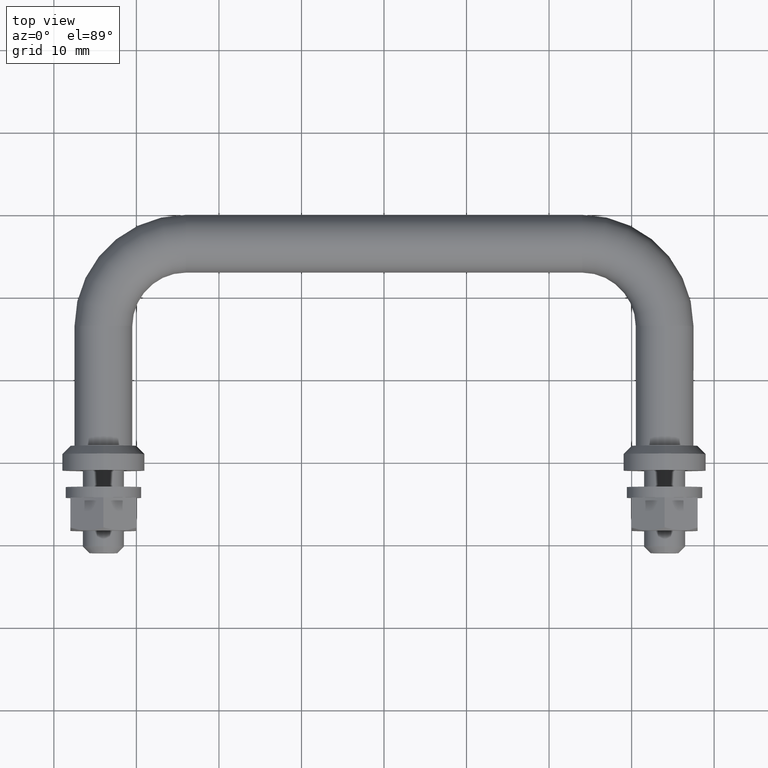
[diagram: clean part render]
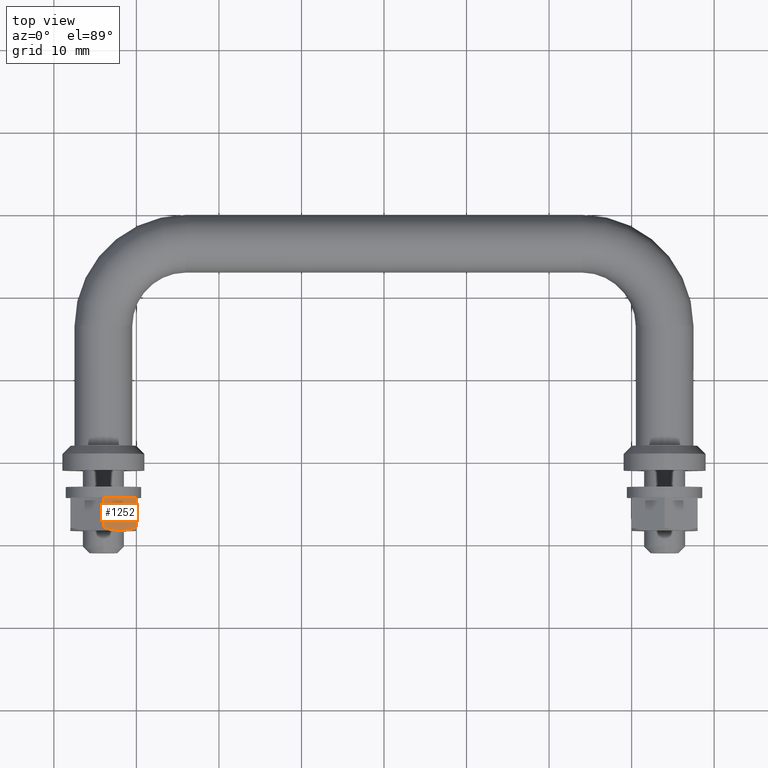
[diagram: same view with one face highlighted and labeled with its STEP entity id]
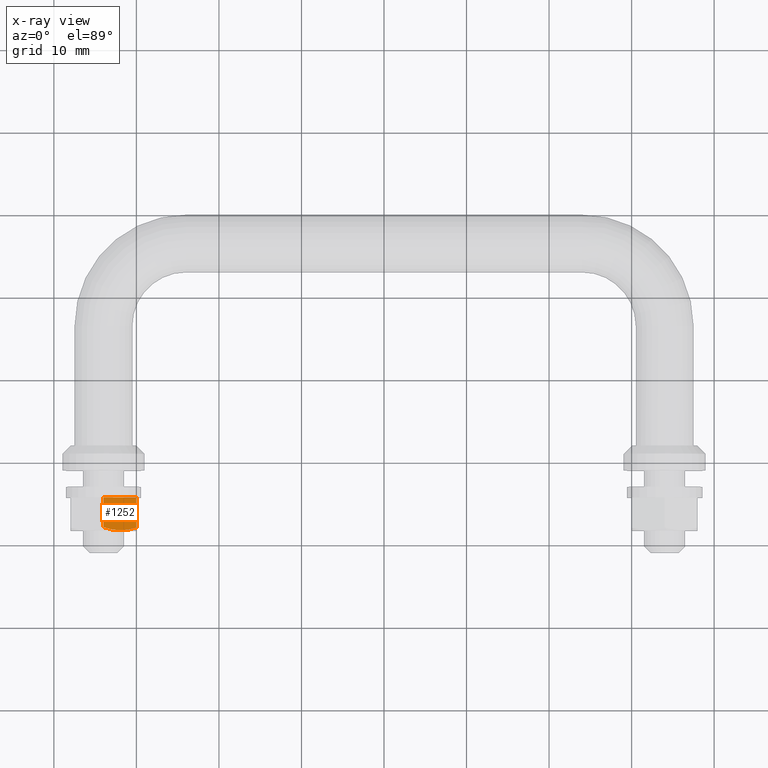
[diagram: x-ray of the same camera — body ghosted, the highlighted face saturated]
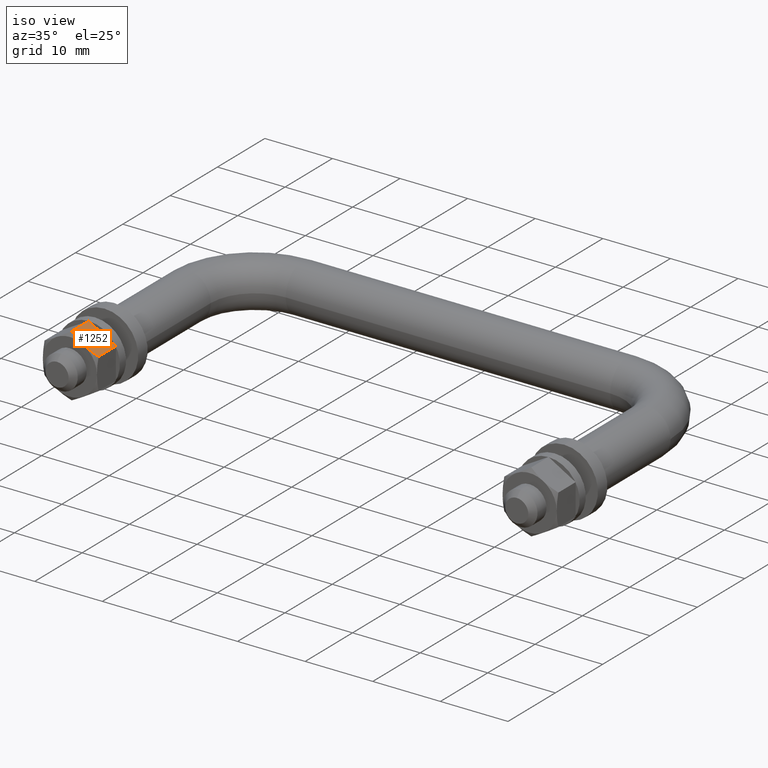
[diagram: same view with one face highlighted and labeled with its STEP entity id]
A machine part, top view. The second image highlights one B-rep face of the part: STEP entity #1252.
The next image is the same camera in x-ray: the body ghosted, the highlighted face saturated — about 0% of this face is hidden behind the body in this view.
A second angle (iso view) of the same face is appended — the face is thin or edge-on in the first view.
In plain terms, the highlighted planar face has unit normal (-0.5, 0, -0.866).
Its self-contained STEP definition (entity closure, byte-faithful):
#18 = CARTESIAN_POINT ( 'NONE',  ( 4.000000000000000000, 7.942734720925199300, -2.309400000000000100 ) ) ;
#65 = CARTESIAN_POINT ( 'NONE',  ( 4.000000000000000000, 4.299999999999999800, -2.309400000000000100 ) ) ;
#68 = CARTESIAN_POINT ( 'NONE',  ( 4.000000000000000000, 1004.300000000000000, -2.309400000000000100 ) ) ;
#87 = CARTESIAN_POINT ( 'NONE',  ( 1.318515806956523300, 8.300000794391618100, -3.857554898853658100 ) ) ;
#153 = VECTOR ( 'NONE', #352, 1000.000000000000000 ) ;
#206 = DIRECTION ( 'NONE',  ( -0.4999998251561803000, 0.0000000000000000000, 0.8660255047305415200 ) ) ;
#222 = PLANE ( 'NONE',  #1309 ) ;
#260 = LINE ( 'NONE', #1583, #153 ) ;
#285 = VERTEX_POINT ( 'NONE', #342 ) ;
#342 = CARTESIAN_POINT ( 'NONE',  ( 1.999999300624725000, 8.300000000000000700, -3.464102018922179800 ) ) ;
#352 = DIRECTION ( 'NONE',  ( 0.0000000000000000000, -1.000000000000000000, 0.0000000000000000000 ) ) ;
#358 = DIRECTION ( 'NONE',  ( 0.8660255047305415200, 0.0000000000000000000, 0.4999998251561803000 ) ) ;
#393 = EDGE_CURVE ( 'NONE', #475, #1440, #1103, .T. ) ;
#442 = CARTESIAN_POINT ( 'NONE',  ( 2.339466985259596800, 8.300000814133108300, -3.268108736060376400 ) ) ;
#475 = VERTEX_POINT ( 'NONE', #18 ) ;
#491 = EDGE_CURVE ( 'NONE', #285, #475, #721, .T. ) ;
#495 = DIRECTION ( 'NONE',  ( 0.0000000000000000000, -1.000000000000000000, 0.0000000000000000000 ) ) ;
#506 = CARTESIAN_POINT ( 'NONE',  ( 0.6543456345604158300, 8.160850763250261200, -4.241013547886552700 ) ) ;
#547 = EDGE_LOOP ( 'NONE', ( #706, #1277, #1626, #1553, #791 ) ) ;
#571 = VECTOR ( 'NONE', #1748, 1000.000000000000100 ) ;
#590 = CARTESIAN_POINT ( 'NONE',  ( 3.344563523170211500, 8.141325098309339500, -2.687816249897680100 ) ) ;
#706 = ORIENTED_EDGE ( 'NONE', *, *, #869, .F. ) ;
#721 = B_SPLINE_CURVE_WITH_KNOTS ( 'NONE', 3,
 ( #1000, #442, #1412, #590, #1544, #724 ),
 .UNSPECIFIED., .F., .F.,
 ( 4, 2, 4 ),
 ( 0.002336972106660224200, 0.003500974608851519100, 0.004664977111042814500 ),
 .UNSPECIFIED. ) ;
#724 = CARTESIAN_POINT ( 'NONE',  ( 4.000000000000000000, 7.942734720925199300, -2.309400000000000100 ) ) ;
#735 = EDGE_CURVE ( 'NONE', #1440, #1688, #954, .T. ) ;
#779 = VECTOR ( 'NONE', #495, 1000.000000000000000 ) ;
#791 = ORIENTED_EDGE ( 'NONE', *, *, #735, .T. ) ;
#869 = EDGE_CURVE ( 'NONE', #1306, #1688, #260, .T. ) ;
#915 = FACE_OUTER_BOUND ( 'NONE', #547, .T. ) ;
#954 = LINE ( 'NONE', #65, #571 ) ;
#1000 = CARTESIAN_POINT ( 'NONE',  ( 1.999999300624725000, 8.300000000000000700, -3.464102018922179800 ) ) ;
#1060 = CARTESIAN_POINT ( 'NONE',  ( 4.000000000000000000, 4.299999999999999800, -2.309400000000000100 ) ) ;
#1066 = EDGE_CURVE ( 'NONE', #1306, #285, #1375, .T. ) ;
#1070 = CARTESIAN_POINT ( 'NONE',  ( 1.999999300624725000, 8.300000000000000700, -3.464102018922179800 ) ) ;
#1103 = LINE ( 'NONE', #1459, #779 ) ;
#1198 = CARTESIAN_POINT ( 'NONE',  ( -3.279943084799095000E-016, 7.942735653425469200, -4.618800000000000200 ) ) ;
#1252 = ADVANCED_FACE ( 'NONE', ( #915 ), #222, .F. ) ;
#1277 = ORIENTED_EDGE ( 'NONE', *, *, #1066, .T. ) ;
#1306 = VERTEX_POINT ( 'NONE', #1198 ) ;
#1309 = AXIS2_PLACEMENT_3D ( 'NONE', #68, #206, #358 ) ;
#1375 = B_SPLINE_CURVE_WITH_KNOTS ( 'NONE', 3,
 ( #1466, #506, #87, #1070 ),
 .UNSPECIFIED., .F., .F.,
 ( 4, 4 ),
 ( 2.380737231991320900E-007, 0.002336972106660224200 ),
 .UNSPECIFIED. ) ;
#1412 = CARTESIAN_POINT ( 'NONE',  ( 2.678493694350927900, 8.265790480939019200, -3.072371665566495700 ) ) ;
#1440 = VERTEX_POINT ( 'NONE', #1060 ) ;
#1459 = CARTESIAN_POINT ( 'NONE',  ( 4.000000000000000000, 1004.300000000000000, -2.309400000000000100 ) ) ;
#1466 = CARTESIAN_POINT ( 'NONE',  ( -3.279943084799095000E-016, 7.942735653425469200, -4.618800000000000200 ) ) ;
#1544 = CARTESIAN_POINT ( 'NONE',  ( 3.673643186388162900, 8.051520388864540600, -2.497822106338794900 ) ) ;
#1553 = ORIENTED_EDGE ( 'NONE', *, *, #393, .T. ) ;
#1583 = CARTESIAN_POINT ( 'NONE',  ( 0.0000000000000000000, 1004.300000000000000, -4.618800000000000200 ) ) ;
#1626 = ORIENTED_EDGE ( 'NONE', *, *, #491, .T. ) ;
#1688 = VERTEX_POINT ( 'NONE', #1707 ) ;
#1707 = CARTESIAN_POINT ( 'NONE',  ( 0.0000000000000000000, 4.299999999999999800, -4.618800000000000200 ) ) ;
#1748 = DIRECTION ( 'NONE',  ( -0.8660255047305415200, 0.0000000000000000000, -0.4999998251561803000 ) ) ;